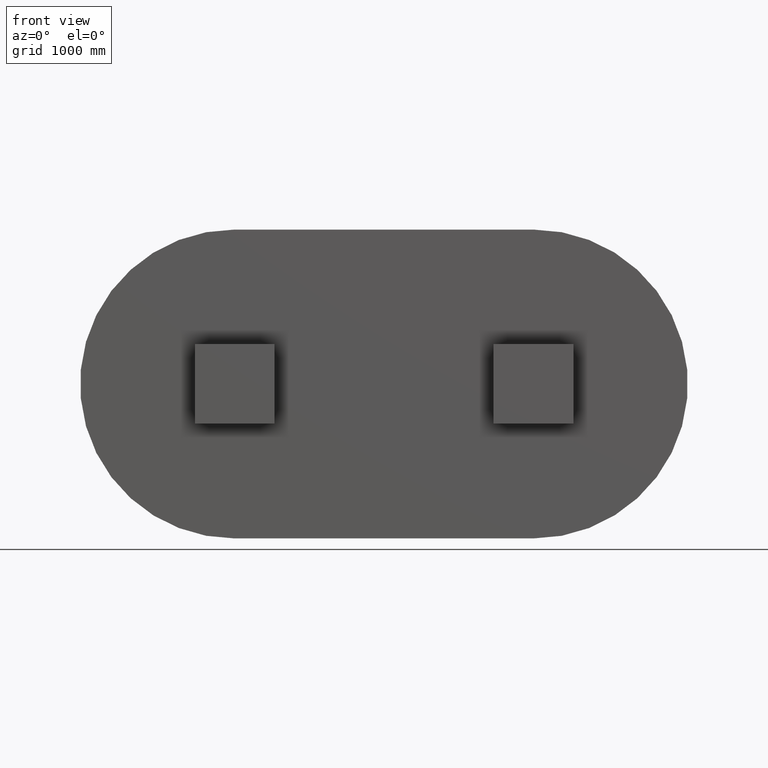
[diagram: clean part render]
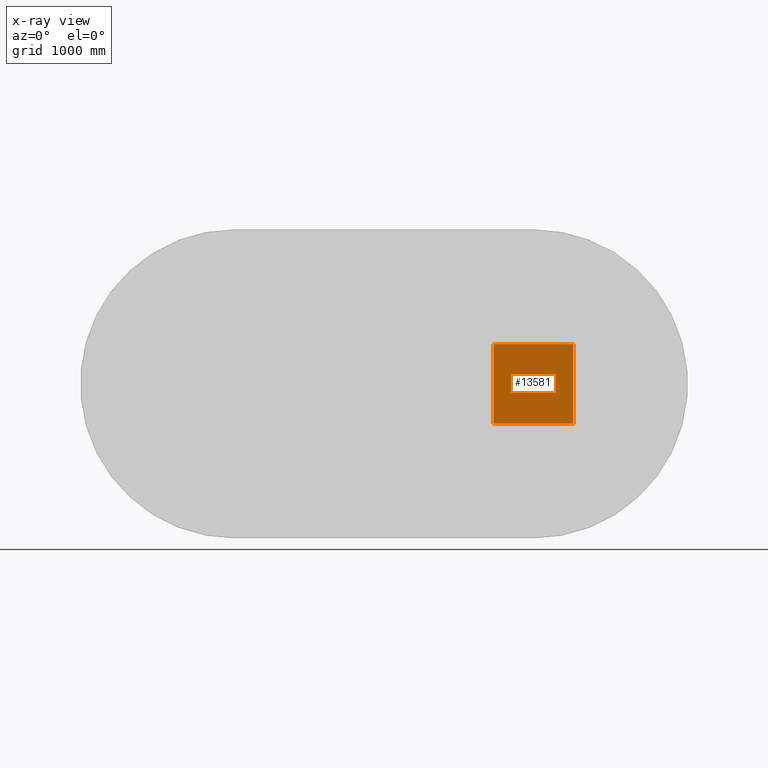
[diagram: x-ray — body ghosted, one internal face saturated and labeled with its STEP entity id]
A machine part, front view, then the same camera in x-ray: the body is ghosted and one INTERNAL B-rep face — a face not visible from any outside direction — is saturated and labeled: STEP entity #13581.
In plain terms, the highlighted planar face has unit normal (0, -1, -0).
Its self-contained STEP definition (entity closure, byte-faithful):
#374 = VERTEX_POINT ( 'NONE', #8786 ) ;
#816 = CARTESIAN_POINT ( 'NONE',  ( 800.0000000000000000, 99.99999999999991500, 800.0000000000000000 ) ) ;
#1581 = PLANE ( 'NONE',  #5481 ) ;
#3039 = DIRECTION ( 'NONE',  ( 0.0000000000000000000, -1.000000000000000000, -1.214306433183765000E-016 ) ) ;
#4050 = EDGE_CURVE ( 'NONE', #6481, #16289, #17359, .T. ) ;
#4179 = ORIENTED_EDGE ( 'NONE', *, *, #17241, .T. ) ;
#4185 = EDGE_CURVE ( 'NONE', #8836, #16289, #17979, .T. ) ;
#4452 = CARTESIAN_POINT ( 'NONE',  ( 800.0000000000000000, 100.0000000000000000, 0.0000000000000000000 ) ) ;
#4480 = CARTESIAN_POINT ( 'NONE',  ( 800.0000000000000000, 100.0000000000000000, 0.0000000000000000000 ) ) ;
#4746 = ORIENTED_EDGE ( 'NONE', *, *, #4050, .F. ) ;
#4961 = VECTOR ( 'NONE', #5908, 1000.000000000000000 ) ;
#5481 = AXIS2_PLACEMENT_3D ( 'NONE', #8752, #3039, #12984 ) ;
#5908 = DIRECTION ( 'NONE',  ( -1.000000000000000000, -0.0000000000000000000, -0.0000000000000000000 ) ) ;
#6121 = EDGE_LOOP ( 'NONE', ( #6722, #4746, #8206, #4179 ) ) ;
#6481 = VERTEX_POINT ( 'NONE', #11989 ) ;
#6722 = ORIENTED_EDGE ( 'NONE', *, *, #4185, .T. ) ;
#8206 = ORIENTED_EDGE ( 'NONE', *, *, #9698, .F. ) ;
#8752 = CARTESIAN_POINT ( 'NONE',  ( 800.0000000000000000, 100.0000000000000000, 0.0000000000000000000 ) ) ;
#8763 = LINE ( 'NONE', #4452, #4961 ) ;
#8786 = CARTESIAN_POINT ( 'NONE',  ( 800.0000000000000000, 100.0000000000000000, 0.0000000000000000000 ) ) ;
#8836 = VERTEX_POINT ( 'NONE', #12506 ) ;
#9698 = EDGE_CURVE ( 'NONE', #374, #6481, #16863, .T. ) ;
#10775 = VECTOR ( 'NONE', #10813, 1000.000000000000000 ) ;
#10813 = DIRECTION ( 'NONE',  ( 0.0000000000000000000, -1.214306433183765000E-016, 1.000000000000000000 ) ) ;
#11964 = CARTESIAN_POINT ( 'NONE',  ( 0.0000000000000000000, 99.99999999999991500, 800.0000000000000000 ) ) ;
#11989 = CARTESIAN_POINT ( 'NONE',  ( 800.0000000000000000, 99.99999999999991500, 800.0000000000000000 ) ) ;
#12506 = CARTESIAN_POINT ( 'NONE',  ( 0.0000000000000000000, 100.0000000000000000, 0.0000000000000000000 ) ) ;
#12984 = DIRECTION ( 'NONE',  ( 0.0000000000000000000, 1.214306433183765000E-016, -1.000000000000000000 ) ) ;
#13581 = ADVANCED_FACE ( 'NONE', ( #16235 ), #1581, .F. ) ;
#13792 = VECTOR ( 'NONE', #15448, 1000.000000000000000 ) ;
#14860 = CARTESIAN_POINT ( 'NONE',  ( 0.0000000000000000000, 100.0000000000000000, 0.0000000000000000000 ) ) ;
#15448 = DIRECTION ( 'NONE',  ( -1.000000000000000000, -0.0000000000000000000, -0.0000000000000000000 ) ) ;
#16235 = FACE_OUTER_BOUND ( 'NONE', #6121, .T. ) ;
#16289 = VERTEX_POINT ( 'NONE', #11964 ) ;
#16856 = DIRECTION ( 'NONE',  ( 0.0000000000000000000, -1.214306433183765000E-016, 1.000000000000000000 ) ) ;
#16863 = LINE ( 'NONE', #4480, #17281 ) ;
#17241 = EDGE_CURVE ( 'NONE', #374, #8836, #8763, .T. ) ;
#17281 = VECTOR ( 'NONE', #16856, 1000.000000000000000 ) ;
#17359 = LINE ( 'NONE', #816, #13792 ) ;
#17979 = LINE ( 'NONE', #14860, #10775 ) ;